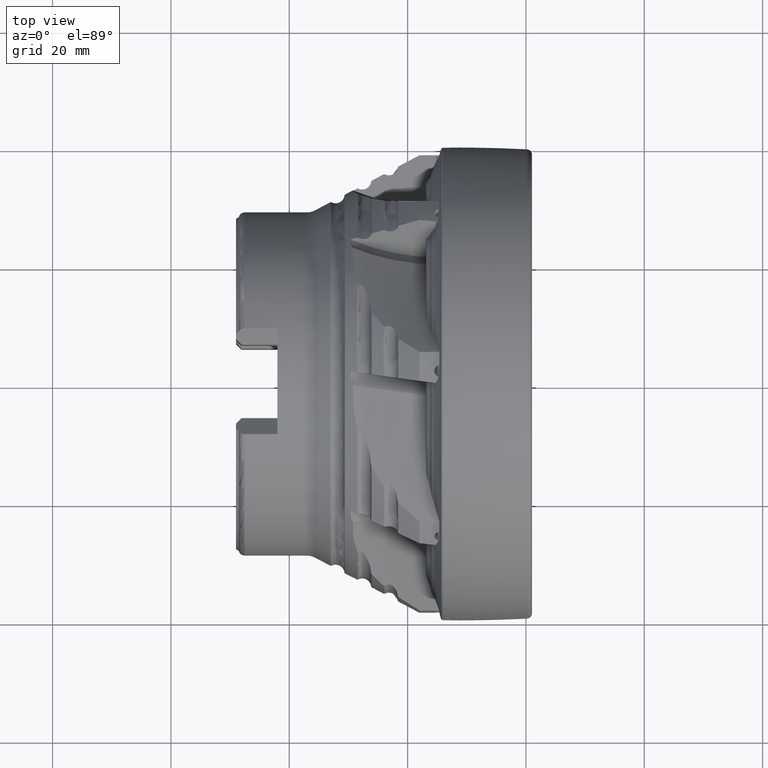
[diagram: clean part render]
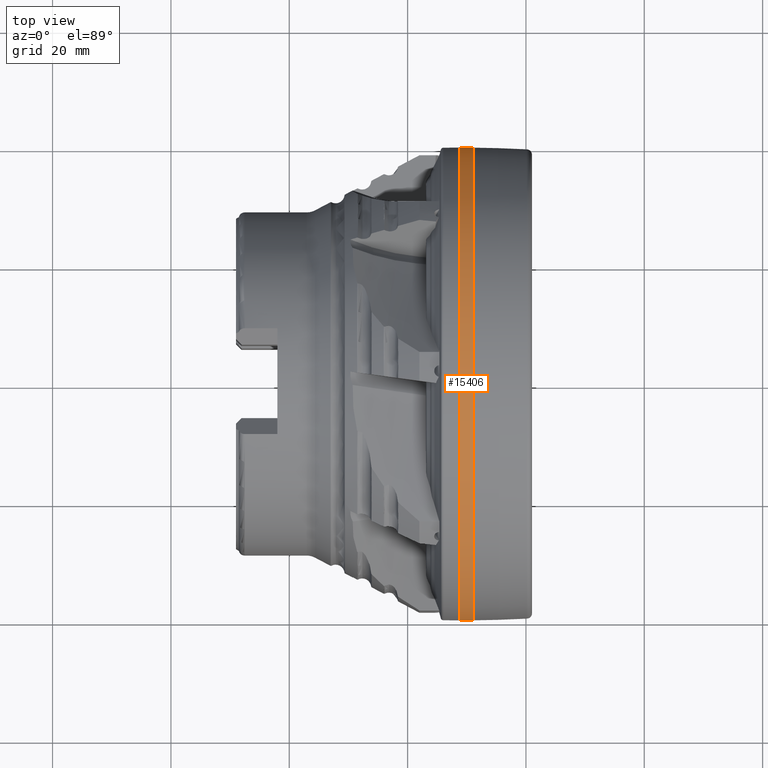
[diagram: same view with one face highlighted and labeled with its STEP entity id]
A machine part, top view. The second image highlights one B-rep face of the part: STEP entity #15406.
In plain terms, the highlighted conical surface has half-angle 0.456 deg.
Its self-contained STEP definition (entity closure, byte-faithful):
#16 = FACE_OUTER_BOUND ( 'NONE', #9805, .T. ) ;
#184 = VECTOR ( 'NONE', #318, 1000.000000000000000 ) ;
#318 = DIRECTION ( 'NONE',  ( -0.9999683536505121761, 0.007955607926753437836, 9.742809782770056355E-19 ) ) ;
#890 = CARTESIAN_POINT ( 'NONE',  ( -8.916537182764502134, -39.94836789889751572, 0.0000000000000000000 ) ) ;
#1090 = EDGE_CURVE ( 'NONE', #2170, #14554, #2861, .T. ) ;
#2170 = VERTEX_POINT ( 'NONE', #15966 ) ;
#2337 = LINE ( 'NONE', #890, #7809 ) ;
#2655 = EDGE_CURVE ( 'NONE', #13379, #5894, #2337, .T. ) ;
#2861 = LINE ( 'NONE', #14076, #184 ) ;
#3181 = DIRECTION ( 'NONE',  ( -1.302129096683041481E-16, 1.000000000000000000, 0.0000000000000000000 ) ) ;
#5894 = VERTEX_POINT ( 'NONE', #13791 ) ;
#6107 = CARTESIAN_POINT ( 'NONE',  ( -11.21123709275781088, -2.849895366745565052E-15, 0.0000000000000000000 ) ) ;
#6120 = ORIENTED_EDGE ( 'NONE', *, *, #2655, .F. ) ;
#6195 = ORIENTED_EDGE ( 'NONE', *, *, #17979, .F. ) ;
#6243 = EDGE_CURVE ( 'NONE', #14554, #5894, #11248, .T. ) ;
#6968 = CARTESIAN_POINT ( 'NONE',  ( -8.916537182764507463, -2.569993143181442113E-15, 0.0000000000000000000 ) ) ;
#7606 = CIRCLE ( 'NONE', #13149, 39.94836789889751572 ) ;
#7809 = VECTOR ( 'NONE', #11983, 1000.000000000000000 ) ;
#7815 = CARTESIAN_POINT ( 'NONE',  ( -11.21123709275781621, 39.96662420943656713, 4.894499841081160874E-15 ) ) ;
#7850 = ORIENTED_EDGE ( 'NONE', *, *, #1090, .T. ) ;
#8496 = ORIENTED_EDGE ( 'NONE', *, *, #6243, .T. ) ;
#9183 = AXIS2_PLACEMENT_3D ( 'NONE', #6107, #14311, #3181 ) ;
#9590 = CARTESIAN_POINT ( 'NONE',  ( -8.916537182764507463, -2.569993143181442113E-15, 0.0000000000000000000 ) ) ;
#9805 = EDGE_LOOP ( 'NONE', ( #6195, #7850, #8496, #6120 ) ) ;
#9863 = DIRECTION ( 'NONE',  ( 1.302724166629607001E-16, -1.000000000000000000, 0.0000000000000000000 ) ) ;
#10203 = DIRECTION ( 'NONE',  ( -1.000000000000000000, -1.219777027685245115E-16, 0.0000000000000000000 ) ) ;
#11248 = CIRCLE ( 'NONE', #9183, 39.96662420943656713 ) ;
#11983 = DIRECTION ( 'NONE',  ( -0.9999683536505121761, -0.007955607926753680698, 0.0000000000000000000 ) ) ;
#12526 = DIRECTION ( 'NONE',  ( 1.000000000000000000, 1.219777027685245115E-16, -0.0000000000000000000 ) ) ;
#13149 = AXIS2_PLACEMENT_3D ( 'NONE', #6968, #12526, #15345 ) ;
#13379 = VERTEX_POINT ( 'NONE', #15931 ) ;
#13624 = CONICAL_SURFACE ( 'NONE', #14226, 39.94836789889751572, 0.007955691849798850190 ) ;
#13791 = CARTESIAN_POINT ( 'NONE',  ( -11.21123709275780556, -39.96662420943656713, 0.0000000000000000000 ) ) ;
#14076 = CARTESIAN_POINT ( 'NONE',  ( -8.916537182764512792, 39.94836789889751572, 4.892264087854571674E-15 ) ) ;
#14226 = AXIS2_PLACEMENT_3D ( 'NONE', #9590, #10203, #9863 ) ;
#14311 = DIRECTION ( 'NONE',  ( 1.000000000000000000, 1.219777027685245115E-16, -0.0000000000000000000 ) ) ;
#14554 = VERTEX_POINT ( 'NONE', #7815 ) ;
#15345 = DIRECTION ( 'NONE',  ( -1.302724166629607001E-16, 1.000000000000000000, 0.0000000000000000000 ) ) ;
#15406 = ADVANCED_FACE ( 'NONE', ( #16 ), #13624, .T. ) ;
#15931 = CARTESIAN_POINT ( 'NONE',  ( -8.916537182764502134, -39.94836789889751572, 0.0000000000000000000 ) ) ;
#15966 = CARTESIAN_POINT ( 'NONE',  ( -8.916537182764512792, 39.94836789889751572, 4.892264087854571674E-15 ) ) ;
#17979 = EDGE_CURVE ( 'NONE', #2170, #13379, #7606, .T. ) ;